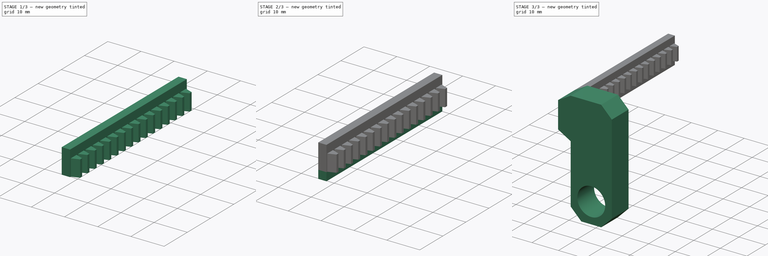
[diagram: build sequence overview — one tinted view per stage of 3, left to right]
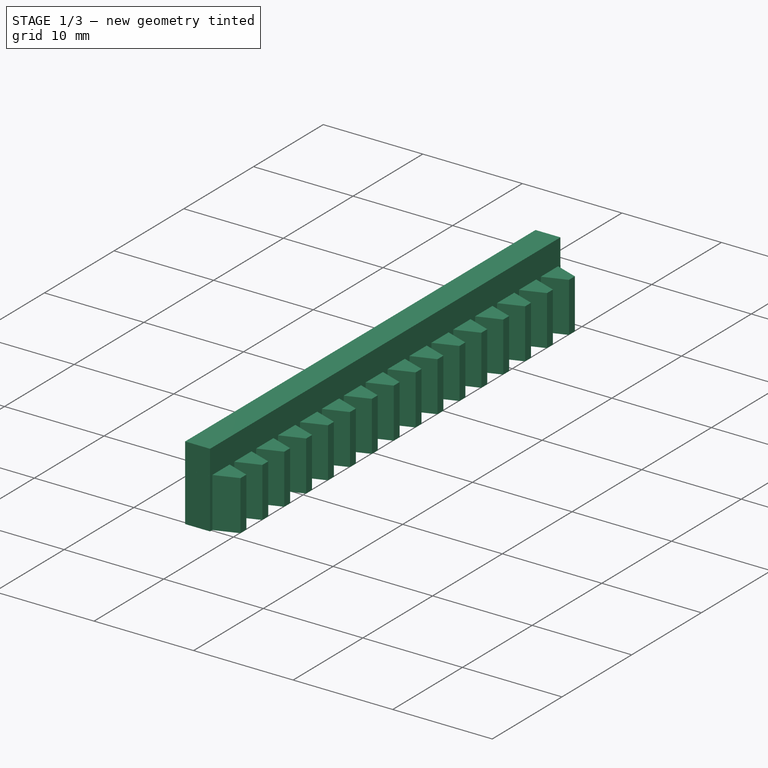
[diagram: stage 1 of 3 — iso view after this stage's code; geometry added in this stage tinted green]
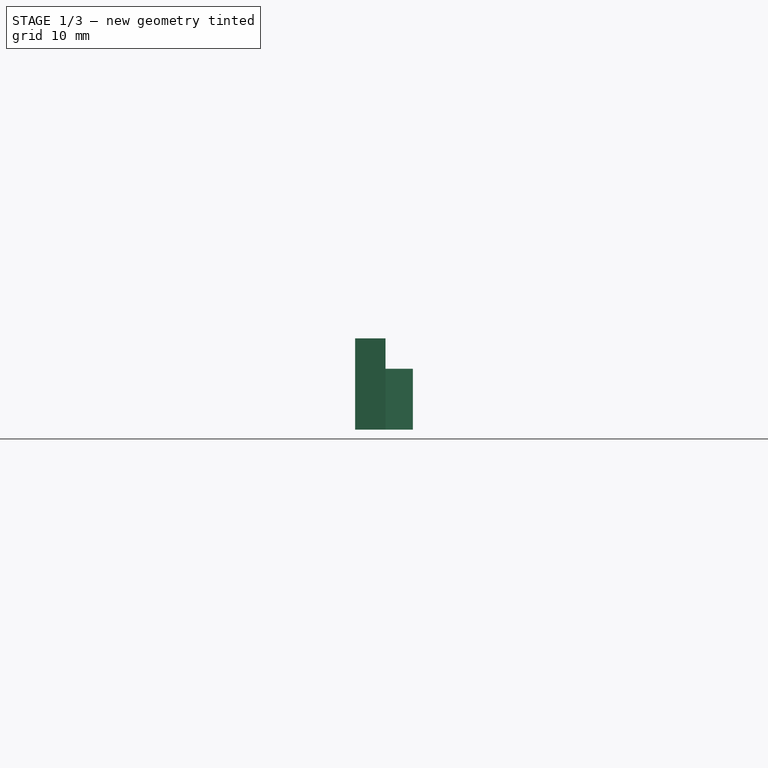
[diagram: stage 1 of 3 — front view after this stage's code; geometry added in this stage tinted green]
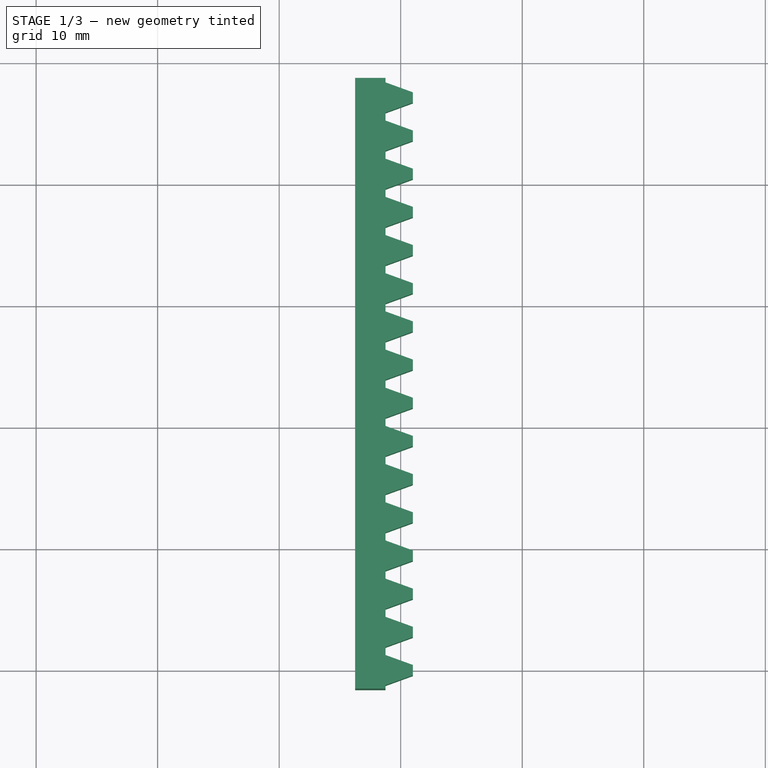
[diagram: stage 1 of 3 — top view after this stage's code; geometry added in this stage tinted green]
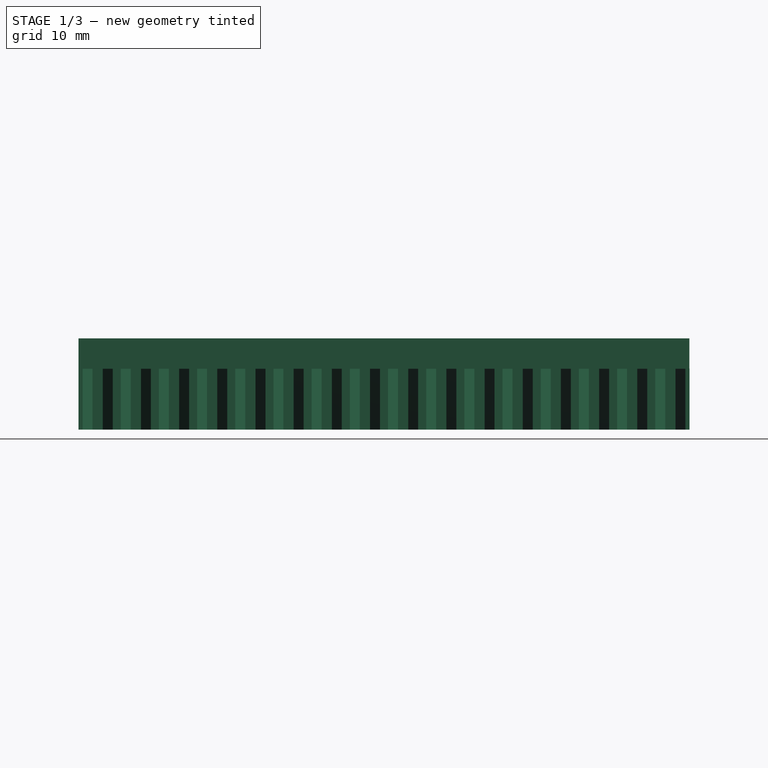
[diagram: stage 1 of 3 — right view after this stage's code; geometry added in this stage tinted green]
FCSTD DOCUMENT  (FreeCAD 0.19R)
Label: z-axis-carriage
License: All rights reserved
LicenseURL: http://en.wikipedia.org/wiki/All_rights_reserved
objects: Sketcher::SketchObject×3, PartDesign::Pad×3, PartDesign::FeaturePython×1, PartDesign::Chamfer×1, PartDesign::Body×1
note: 13 computed .brp shape members not serialized (recipe doc carries the construction recipe); baked Part::Feature solids carry a one-line shape summary decoded from their .brp

FEATURE [PartDesign::FeaturePython] involuterack  # WARN: FeaturePython — macro-defined, semantics opaque (R4)
  AttacherType = Attacher::AttachEngine3D
  add_endings = true
  beta = 0
  clearance = 0.25
  double_helix = false
  head = 0
  height = 5
  module = 1
  pressure_angle = 20
  properties_from_tool = true
  simplified = false
  teeth = 16
  thickness = 2.5
  transverse_pitch = 3.14159
  version = 0.0.3
FEATURE [Sketcher::SketchObject] Sketch
  FullyConstrained = true
  MapMode = 5
  Placement = pos=(0,0,5) rot=(0,0,1;0rad)
  Support = -> [involuterack]
  sketch-geometry (4):
    g0: LineSegment StartX=-3.75 StartY=-1.57 StartZ=0 EndX=-1.25 EndY=-1.57 EndZ=0
    g1: LineSegment StartX=-1.25 StartY=-1.57 StartZ=0 EndX=-1.25 EndY=48.69 EndZ=0
    g2: LineSegment StartX=-1.25 StartY=48.69 StartZ=0 EndX=-3.75 EndY=48.69 EndZ=0
    g3: LineSegment StartX=-3.75 StartY=48.69 StartZ=0 EndX=-3.75 EndY=-1.57 EndZ=0
  constraints (12):
    c: Coincident(g0,g1)
    c: Coincident(g1,g2)
    c: Coincident(g2,g3)
    c: Coincident(g3,g0)
    c: Horizontal(g0)
    c: Horizontal(g2)
    c: Vertical(g1)
    c: Vertical(g3)
    c: DistanceX(g0,g0) = 2.5
    c: DistanceX(g0,g-1) = 1.25
    c: DistanceY(g0,g-1) = 1.57
    c: DistanceY(g3,g3) = 50.26
FEATURE [PartDesign::Pad] Pad
  BaseFeature = -> involuterack
  Direction = (1,1,1)
  Length = 2.5
  Length2 = 100
  Profile = -> Sketch
  Type = 0
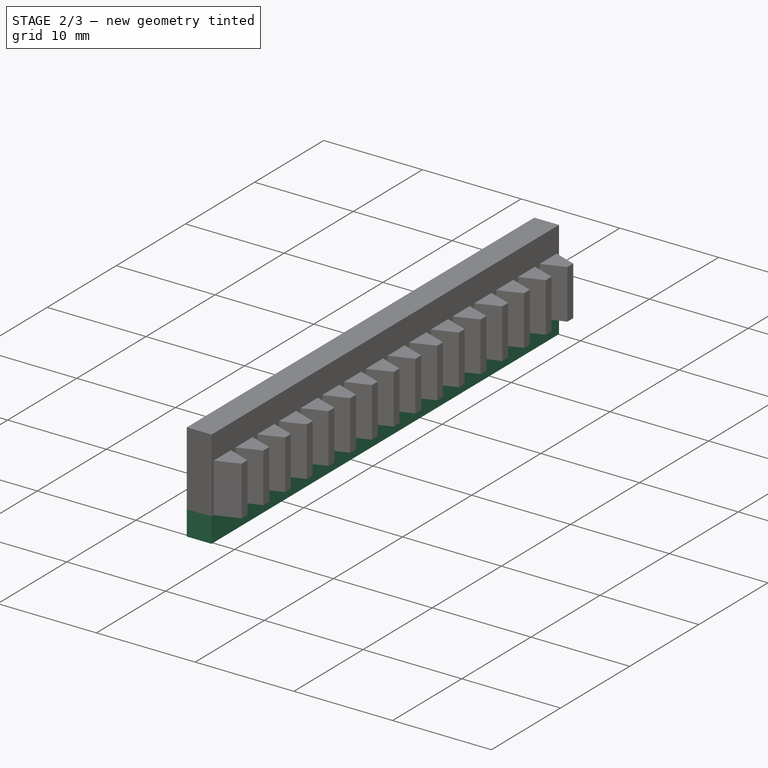
[diagram: stage 2 of 3 — iso view after this stage's code; geometry added in this stage tinted green]
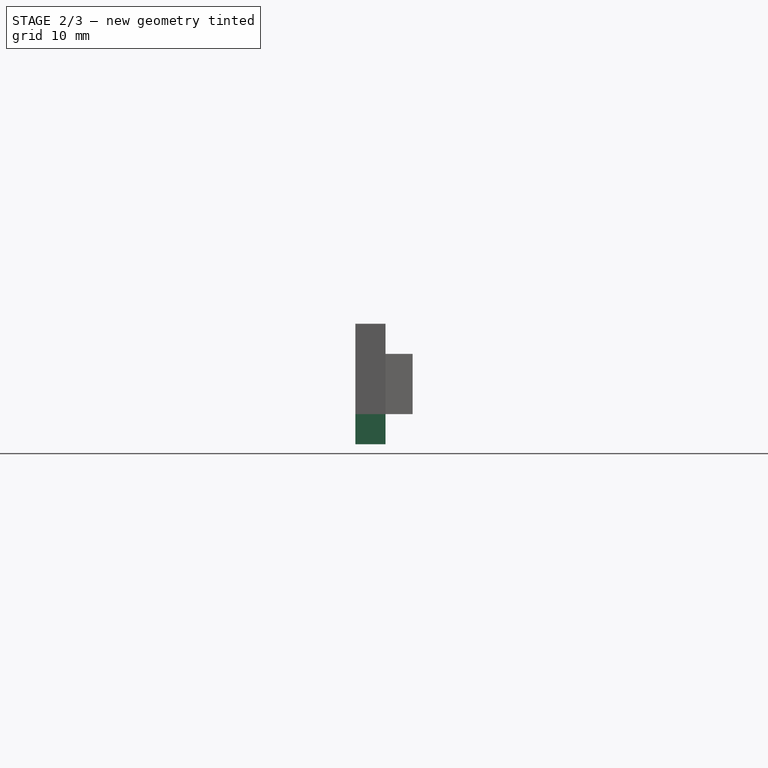
[diagram: stage 2 of 3 — front view after this stage's code; geometry added in this stage tinted green]
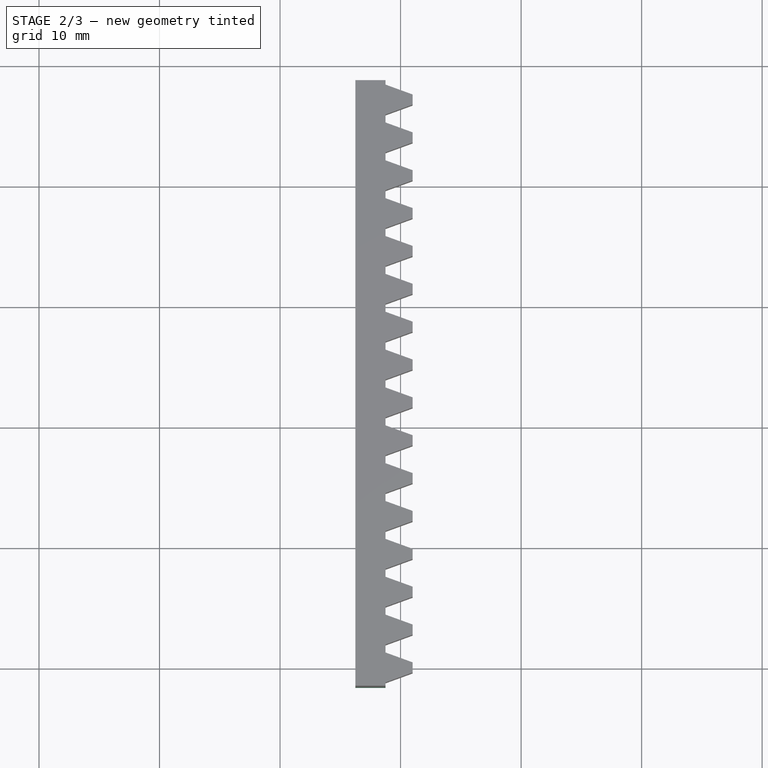
[diagram: stage 2 of 3 — top view after this stage's code; geometry added in this stage tinted green]
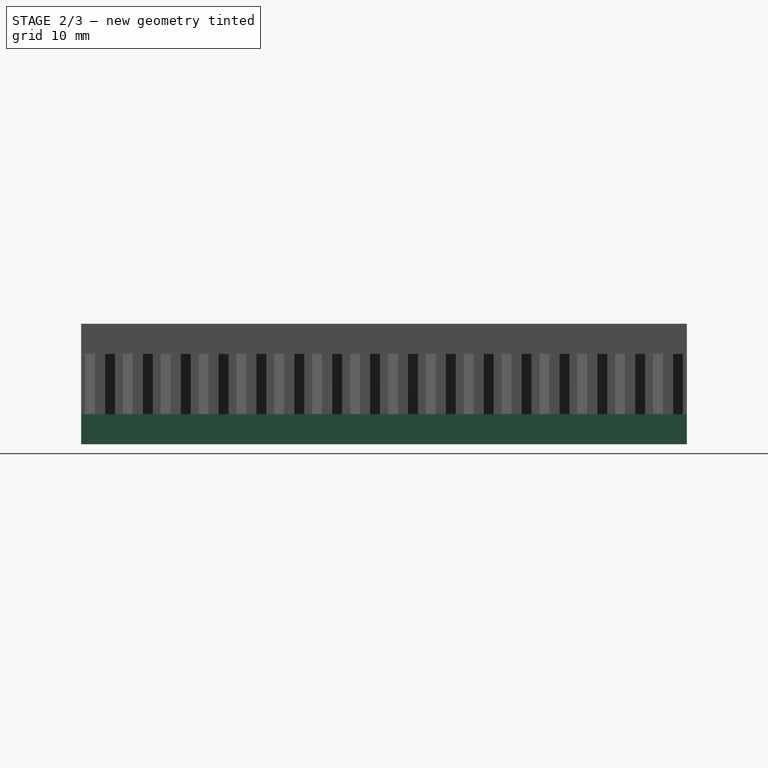
[diagram: stage 2 of 3 — right view after this stage's code; geometry added in this stage tinted green]
FEATURE [Sketcher::SketchObject] Sketch001
  FullyConstrained = true
  MapMode = 5
  Placement = pos=(0,0,0) rot=(1,0,0;3.14159rad)
  Support = -> [Pad]
  sketch-geometry (4):
    g0: LineSegment StartX=-3.75 StartY=1.57 StartZ=0 EndX=-1.25 EndY=1.57 EndZ=0
    g1: LineSegment StartX=-1.25 StartY=1.57 StartZ=0 EndX=-1.25 EndY=-48.69 EndZ=0
    g2: LineSegment StartX=-1.25 StartY=-48.69 StartZ=0 EndX=-3.75 EndY=-48.69 EndZ=0
    g3: LineSegment StartX=-3.75 StartY=-48.69 StartZ=0 EndX=-3.75 EndY=1.57 EndZ=0
  constraints (12):
    c: Coincident(g0,g1)
    c: Coincident(g1,g2)
    c: Coincident(g2,g3)
    c: Coincident(g3,g0)
    c: Horizontal(g0)
    c: Horizontal(g2)
    c: Vertical(g1)
    c: Vertical(g3)
    c: DistanceX(g0,g0) = 2.5
    c: DistanceX(g0,g-1) = 1.25
    c: DistanceY(g-1,g0) = 1.57
    c: DistanceY(g3,g3) = 50.26
FEATURE [PartDesign::Pad] Pad001
  BaseFeature = -> Pad
  Direction = (1,1,1)
  Length = 2.5
  Length2 = 100
  Profile = -> Sketch001
  Type = 0
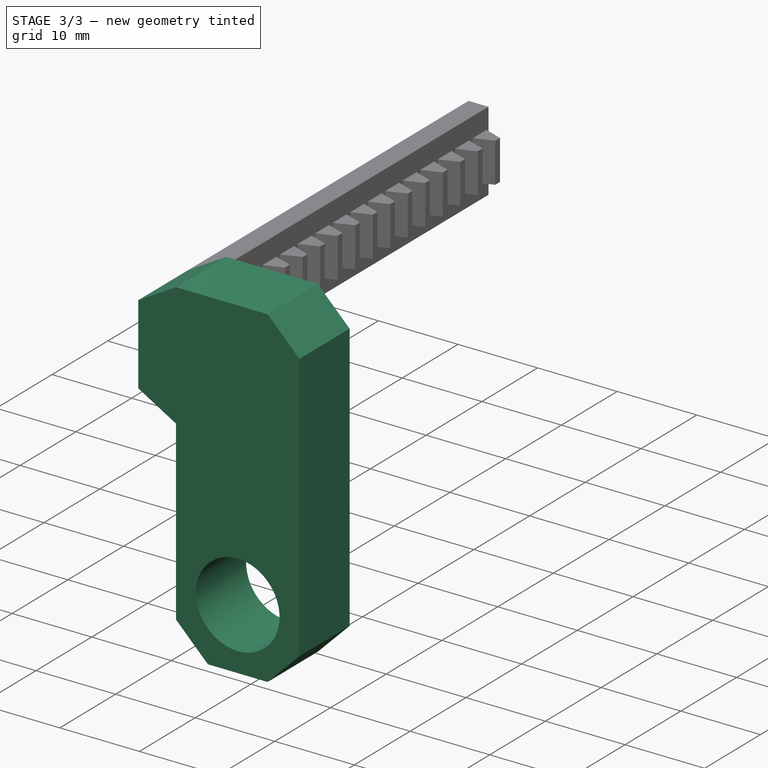
[diagram: stage 3 of 3 — iso view after this stage's code; geometry added in this stage tinted green]
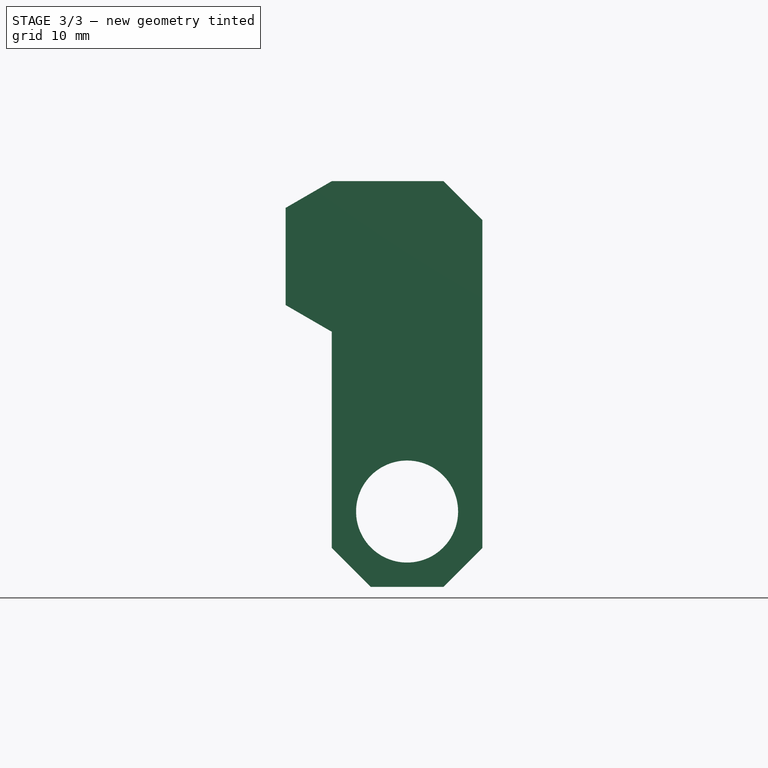
[diagram: stage 3 of 3 — front view after this stage's code; geometry added in this stage tinted green]
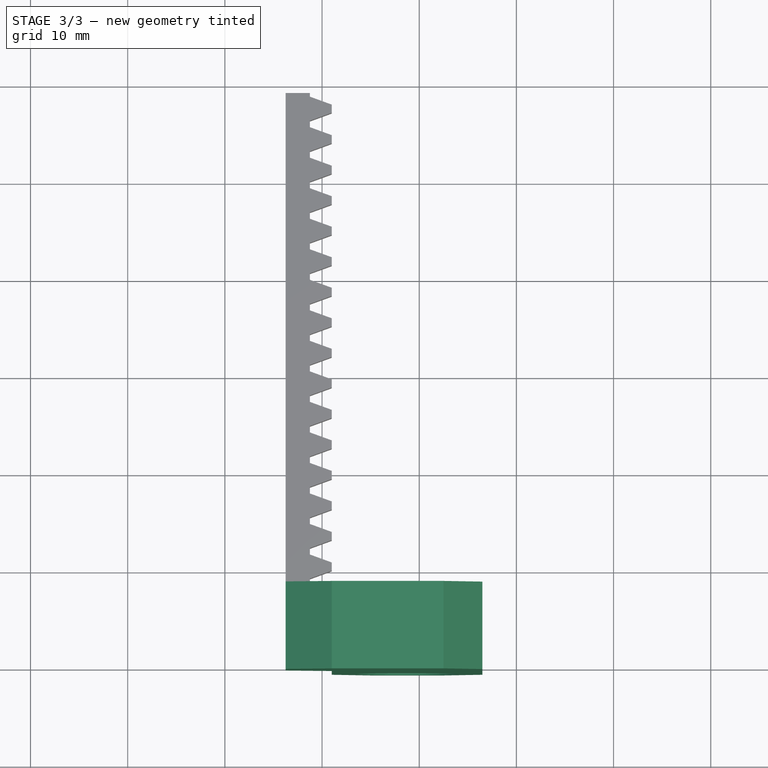
[diagram: stage 3 of 3 — top view after this stage's code; geometry added in this stage tinted green]
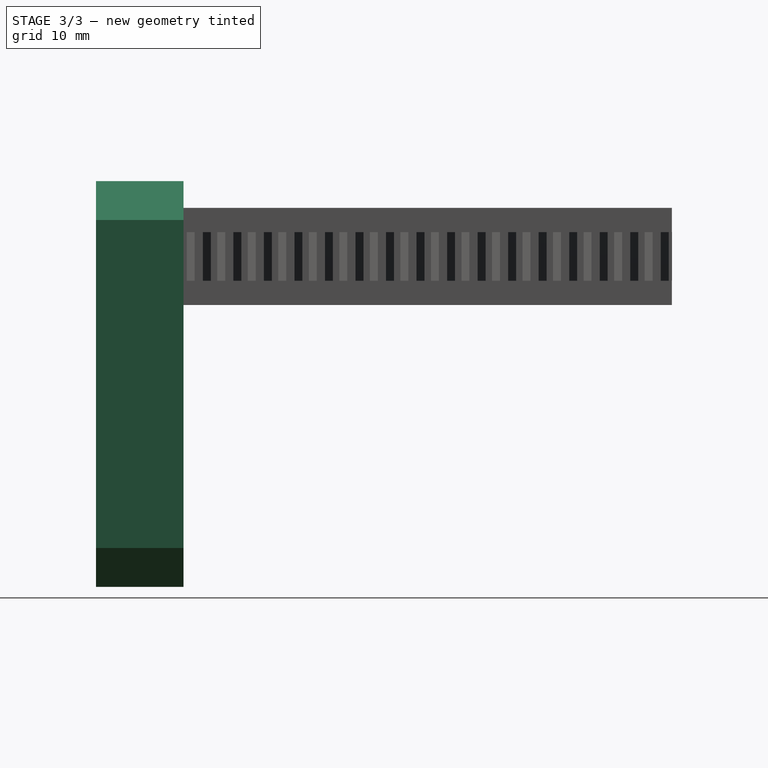
[diagram: stage 3 of 3 — right view after this stage's code; geometry added in this stage tinted green]
FEATURE [Sketcher::SketchObject] Sketch002
  FullyConstrained = true
  MapMode = 5
  Placement = pos=(0,-1.5708,0) rot=(1,0,0;1.5708rad)
  Support = -> [Pad001]
  sketch-geometry (19):
    g0: LineSegment StartX=1 StartY=-5.25 StartZ=0 EndX=16.5 EndY=-5.25 EndZ=0
    g1: LineSegment StartX=16.5 StartY=-5.25 StartZ=0 EndX=16.5 EndY=10.25 EndZ=0
    g2: LineSegment StartX=16.5 StartY=10.25 StartZ=0 EndX=1 EndY=10.25 EndZ=0
    g3: LineSegment StartX=1 StartY=10.25 StartZ=0 EndX=1 EndY=-5.25 EndZ=0
    g4: LineSegment StartX=1 StartY=-5.25 StartZ=0 EndX=16.5 EndY=-5.25 EndZ=0
    g5: LineSegment StartX=16.5 StartY=-5.25 StartZ=0 EndX=16.5 EndY=-16 EndZ=0
    g6: LineSegment StartX=16.5 StartY=-16 StartZ=0 EndX=1 EndY=-16 EndZ=0
    g7: LineSegment StartX=1 StartY=-16 StartZ=0 EndX=1 EndY=-5.25 EndZ=0
    g8: LineSegment StartX=1 StartY=-16 StartZ=0 EndX=16.5 EndY=-16 EndZ=0
    g9: LineSegment StartX=16.5 StartY=-16 StartZ=0 EndX=16.5 EndY=-31.5 EndZ=0
    g10: LineSegment StartX=16.5 StartY=-31.5 StartZ=0 EndX=1 EndY=-31.5 EndZ=0
    g11: LineSegment StartX=1 StartY=-31.5 StartZ=0 EndX=1 EndY=-16 EndZ=0
    g12: LineSegment StartX=-3.75 StartY=-2.5 StartZ=0 EndX=-3.75 EndY=7.5 EndZ=0
    g13: LineSegment StartX=-3.75 StartY=7.5 StartZ=0 EndX=1 EndY=10.25 EndZ=0
    g14: LineSegment StartX=-3.75 StartY=-2.5 StartZ=0 EndX=1 EndY=-5.25 EndZ=0
    g15: LineSegment StartX=-3.75 StartY=2.5 StartZ=0 EndX=1 EndY=2.5 EndZ=0
    g16: LineSegment StartX=1 StartY=-16 StartZ=0 EndX=16.5 EndY=-31.5 EndZ=0
    g17: LineSegment StartX=1 StartY=-31.5 StartZ=0 EndX=16.5 EndY=-16 EndZ=0
    g18: Circle CenterX=8.75 CenterY=-23.75 CenterZ=0 NormalX=0 NormalY=0 NormalZ=1 AngleXU=0 Radius=5.25
  constraints (49):
    c: Coincident(g0,g1)
    c: Coincident(g1,g2)
    c: Coincident(g2,g3)
    c: Coincident(g3,g0)
    c: Horizontal(g0)
    c: Horizontal(g2)
    c: Vertical(g1)
    c: Vertical(g3)
    c: Coincident(g4,g5)
    c: Coincident(g5,g6)
    c: Coincident(g6,g7)
    c: Coincident(g7,g4)
    c: Horizontal(g6)
    c: Vertical(g5)
    c: Vertical(g7)
    c: Coincident(g4,g0)
    c: Coincident(g8,g9)
    c: Coincident(g9,g10)
    c: Coincident(g10,g11)
    c: Coincident(g11,g8)
    c: Horizontal(g10)
    c: Vertical(g9)
    c: Vertical(g11)
    c: Coincident(g8,g6)
    c: Vertical(g12)
    c: Coincident(g13,g12)
    c: Coincident(g13,g2)
    c: Coincident(g14,g12)
    c: Coincident(g14,g0)
    c: Horizontal(g15)
    c: Coincident(g16,g6)
    c: Coincident(g16,g9)
    c: Coincident(g17,g10)
    c: Coincident(g17,g8)
    c: Coincident(g5,g8)
    c: Coincident(g4,g0)
    c: DistanceY(g12,g12) = 10
    c: DistanceY(g12,g-1) = 2.5
    c: DistanceX(g12,g-1) = 3.75
    c: Symmetric(g12,g12,g15)
    c: Symmetric(g0,g2,g15)
    c: DistanceX(g15,g15) = 4.75
    c: Equal(g2,g1)
    c: Equal(g1,g9)
    c: DistanceX(g2,g2) = 15.5
    c: DistanceY(g5,g5) = 10.75
    c: PointOnObject(g18,g17)
    c: PointOnObject(g18,g16)
    c: Diameter(g18) = 10.5
FEATURE [PartDesign::Pad] Pad002
  BaseFeature = -> Pad001
  Direction = (1,1,1)
  Length = 9
  Length2 = 100
  Profile = -> Sketch002
  Type = 0
FEATURE [PartDesign::Chamfer] Chamfer
  Angle = 45
  Base = -> Pad002 [Edge31,Edge2,Edge8]
  BaseFeature = -> Pad002
  ChamferType = 0
  FlipDirection = false
  Size = 4
  Size2 = 1
  SupportTransform = false
FEATURE [PartDesign::Body] Body
  Group = -> [involuterack,Sketch,Pad,Sketch001,Pad001,Sketch002,Pad002,Chamfer]
  Origin = -> Origin
  Tip = -> Chamfer
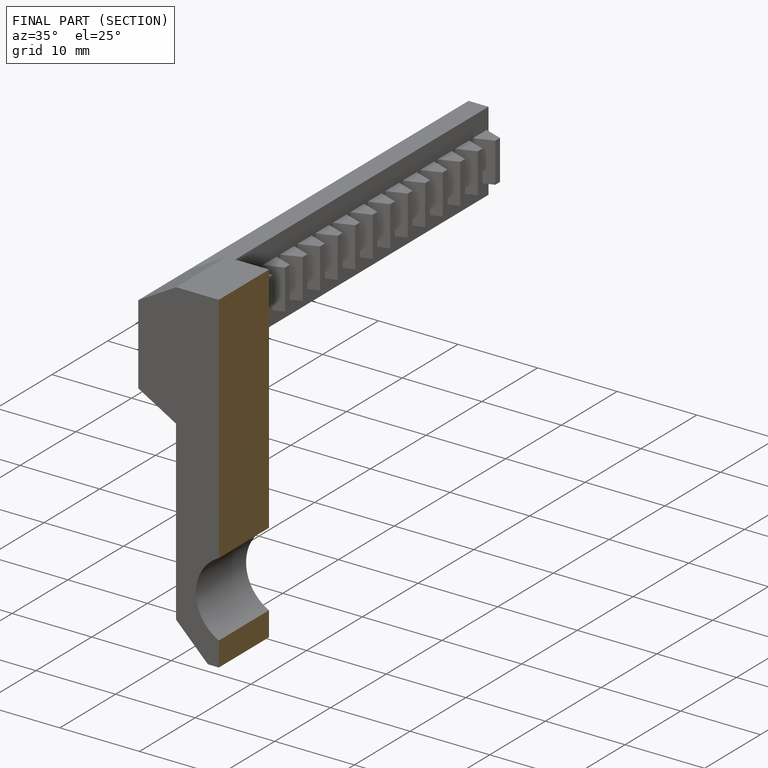
[diagram: finished part — half-section view (interior)]
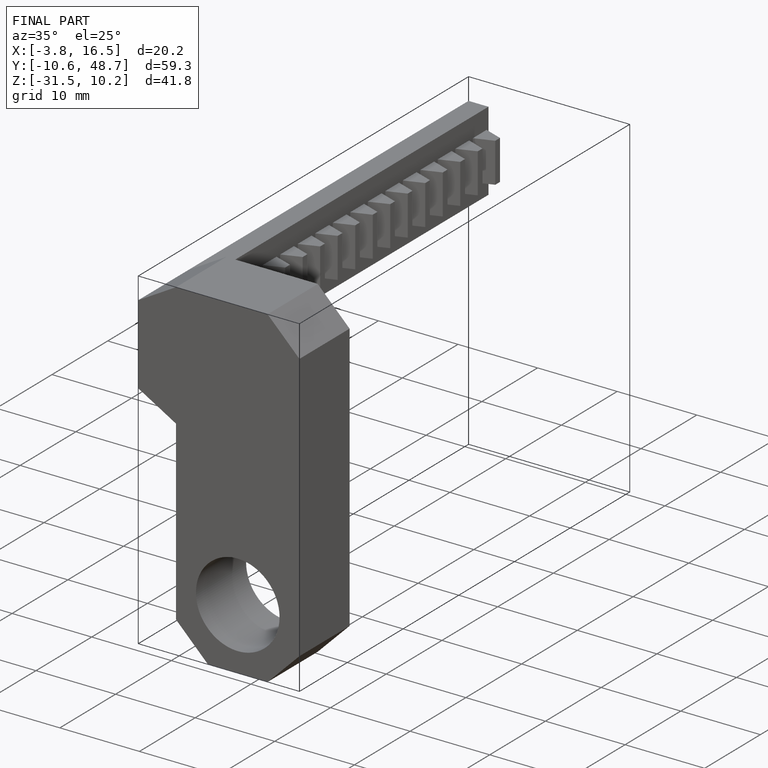
[diagram: finished part — iso view with bounding-box wireframe]
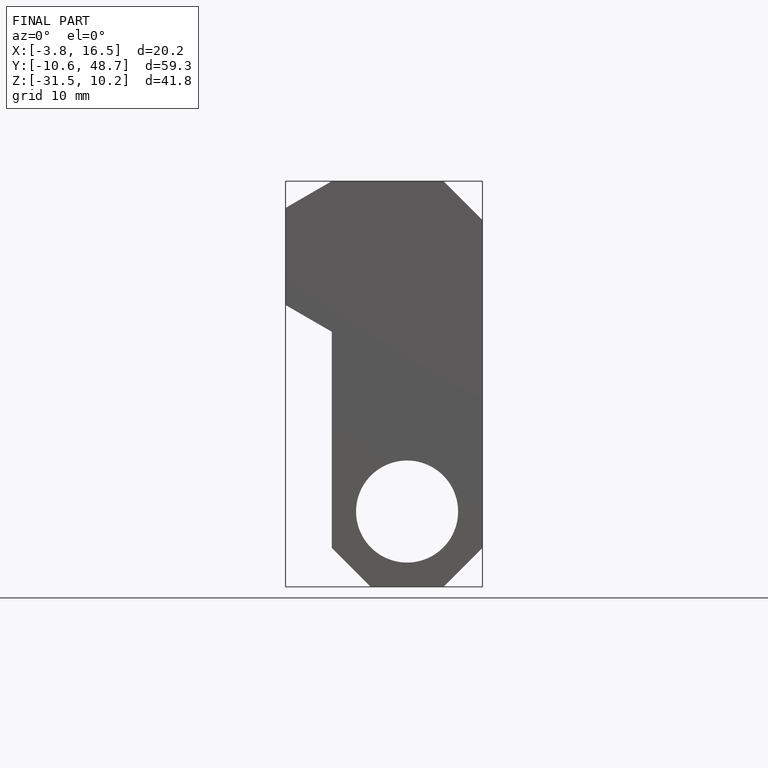
[diagram: finished part — front view with bounding-box wireframe]
